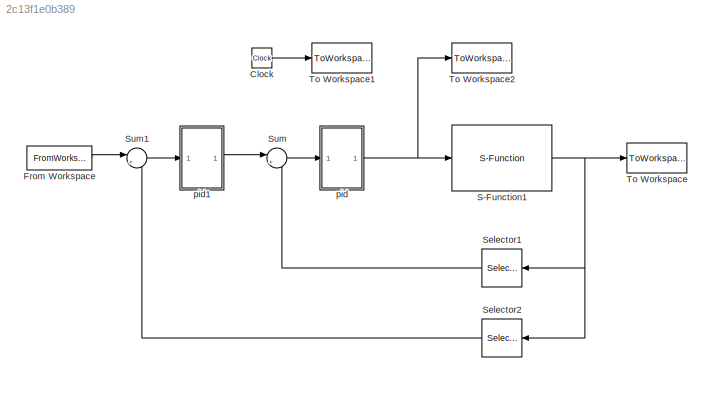
MODEL slx_2c13f1e0b389
KIND model
BLOCK [Clock] Clock
BLOCK [FromWorkspace] From Workspace
  SampleTime = 0
  VariableName = setPos
  ZeroCross = on
BLOCK [S-Function] S-Function1
  EnableBusSupport = off
  FunctionName = objModel
  Parameters = state0,params,modelSelect
  Ports = [1, 1]
BLOCK [Selector] Selector1
  IndexOptions = Index vector (dialog)
  Indices = 2
  InputPortWidth = 4
  OutputSizes = 1
  Ports = [1, 1]
BLOCK [Selector] Selector2
  IndexOptions = Index vector (dialog)
  Indices = 4
  InputPortWidth = 4
  OutputSizes = 1
  Ports = [1, 1]
BLOCK [Sum] Sum
  IconShape = round
  InputSameDT = off
  Inputs = |+-
  OutDataTypeStr = Inherit: Inherit via internal rule
  Ports = [2, 1]
  SaturateOnIntegerOverflow = off
BLOCK [Sum] Sum1
  IconShape = round
  InputSameDT = off
  Inputs = |+-
  OutDataTypeStr = Inherit: Inherit via internal rule
  Ports = [2, 1]
  SaturateOnIntegerOverflow = off
BLOCK [ToWorkspace] To Workspace
  MaxDataPoints = inf
  Ports = [1]
  SampleTime = -1
  VariableName = y
BLOCK [ToWorkspace] To Workspace1
  MaxDataPoints = inf
  Ports = [1]
  SampleTime = -1
  VariableName = t
BLOCK [ToWorkspace] To Workspace2
  MaxDataPoints = inf
  Ports = [1]
  SampleTime = -1
  VariableName = u
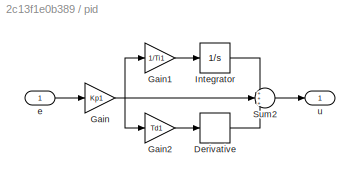
BLOCK [SubSystem] pid
  FunctionWithSeparateData = off
  MaskHideContents = off
  MinAlgLoopOccurrences = off
  Opaque = off
  Ports = [1, 1]
  PropExecContextOutsideSubsystem = off
  RTWSystemCode = Auto
  RequestExecContextInheritance = off
BLOCK [Derivative] pid/Derivative
BLOCK [Gain] pid/Gain
  Gain = Kp1
  OutDataTypeStr = Inherit: Inherit via internal rule
  ParamDataTypeStr = Inherit: Inherit via internal rule
  SaturateOnIntegerOverflow = off
BLOCK [Gain] pid/Gain1
  Gain = 1/Ti1
  OutDataTypeStr = Inherit: Inherit via internal rule
  ParamDataTypeStr = Inherit: Inherit via internal rule
  SaturateOnIntegerOverflow = off
BLOCK [Gain] pid/Gain2
  Gain = Td1
  OutDataTypeStr = Inherit: Inherit via internal rule
  ParamDataTypeStr = Inherit: Inherit via internal rule
  SaturateOnIntegerOverflow = off
BLOCK [Integrator] pid/Integrator
  Ports = [1, 1]
BLOCK [Sum] pid/Sum2
  IconShape = round
  InputSameDT = off
  Inputs = +++
  OutDataTypeStr = Inherit: Inherit via internal rule
  Ports = [3, 1]
  SaturateOnIntegerOverflow = off
BLOCK [Inport] pid/e
  IconDisplay = Port number
BLOCK [Outport] pid/u
  IconDisplay = Port number
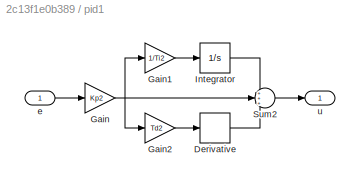
BLOCK [SubSystem] pid1
  FunctionWithSeparateData = off
  MaskHideContents = off
  MinAlgLoopOccurrences = off
  Opaque = off
  Ports = [1, 1]
  PropExecContextOutsideSubsystem = off
  RTWSystemCode = Auto
  RequestExecContextInheritance = off
BLOCK [Derivative] pid1/Derivative
BLOCK [Gain] pid1/Gain
  Gain = Kp2
  OutDataTypeStr = Inherit: Inherit via internal rule
  ParamDataTypeStr = Inherit: Inherit via internal rule
  SaturateOnIntegerOverflow = off
BLOCK [Gain] pid1/Gain1
  Gain = 1/Ti2
  OutDataTypeStr = Inherit: Inherit via internal rule
  ParamDataTypeStr = Inherit: Inherit via internal rule
  SaturateOnIntegerOverflow = off
BLOCK [Gain] pid1/Gain2
  Gain = Td2
  OutDataTypeStr = Inherit: Inherit via internal rule
  ParamDataTypeStr = Inherit: Inherit via internal rule
  SaturateOnIntegerOverflow = off
BLOCK [Integrator] pid1/Integrator
  Ports = [1, 1]
BLOCK [Sum] pid1/Sum2
  IconShape = round
  InputSameDT = off
  Inputs = +++
  OutDataTypeStr = Inherit: Inherit via internal rule
  Ports = [3, 1]
  SaturateOnIntegerOverflow = off
BLOCK [Inport] pid1/e
  IconDisplay = Port number
BLOCK [Outport] pid1/u
  IconDisplay = Port number
LINE Clock:1 -> To Workspace1:1
LINE From Workspace:1 -> Sum1:1
NET S-Function1:1 -> Selector1:1, Selector2:1, To Workspace:1
LINE Selector1:1 -> Sum:2
LINE Selector2:1 -> Sum1:2
LINE Sum1:1 -> pid1:1
LINE Sum:1 -> pid:1
LINE pid/Derivative:1 -> pid/Sum2:3
LINE pid/Gain1:1 -> pid/Integrator:1
LINE pid/Gain2:1 -> pid/Derivative:1
NET pid/Gain:1 -> pid/Gain1:1, pid/Gain2:1, pid/Sum2:2
LINE pid/Integrator:1 -> pid/Sum2:1
LINE pid/Sum2:1 -> pid/u:1
LINE pid/e:1 -> pid/Gain:1
LINE pid1/Derivative:1 -> pid1/Sum2:3
LINE pid1/Gain1:1 -> pid1/Integrator:1
LINE pid1/Gain2:1 -> pid1/Derivative:1
NET pid1/Gain:1 -> pid1/Gain1:1, pid1/Gain2:1, pid1/Sum2:2
LINE pid1/Integrator:1 -> pid1/Sum2:1
LINE pid1/Sum2:1 -> pid1/u:1
LINE pid1/e:1 -> pid1/Gain:1
LINE pid1:1 -> Sum:1
NET pid:1 -> S-Function1:1, To Workspace2:1
note: NET lines group one-source signal fan-out (src -> all destinations, sorted); 1:1 wires keep LINE
